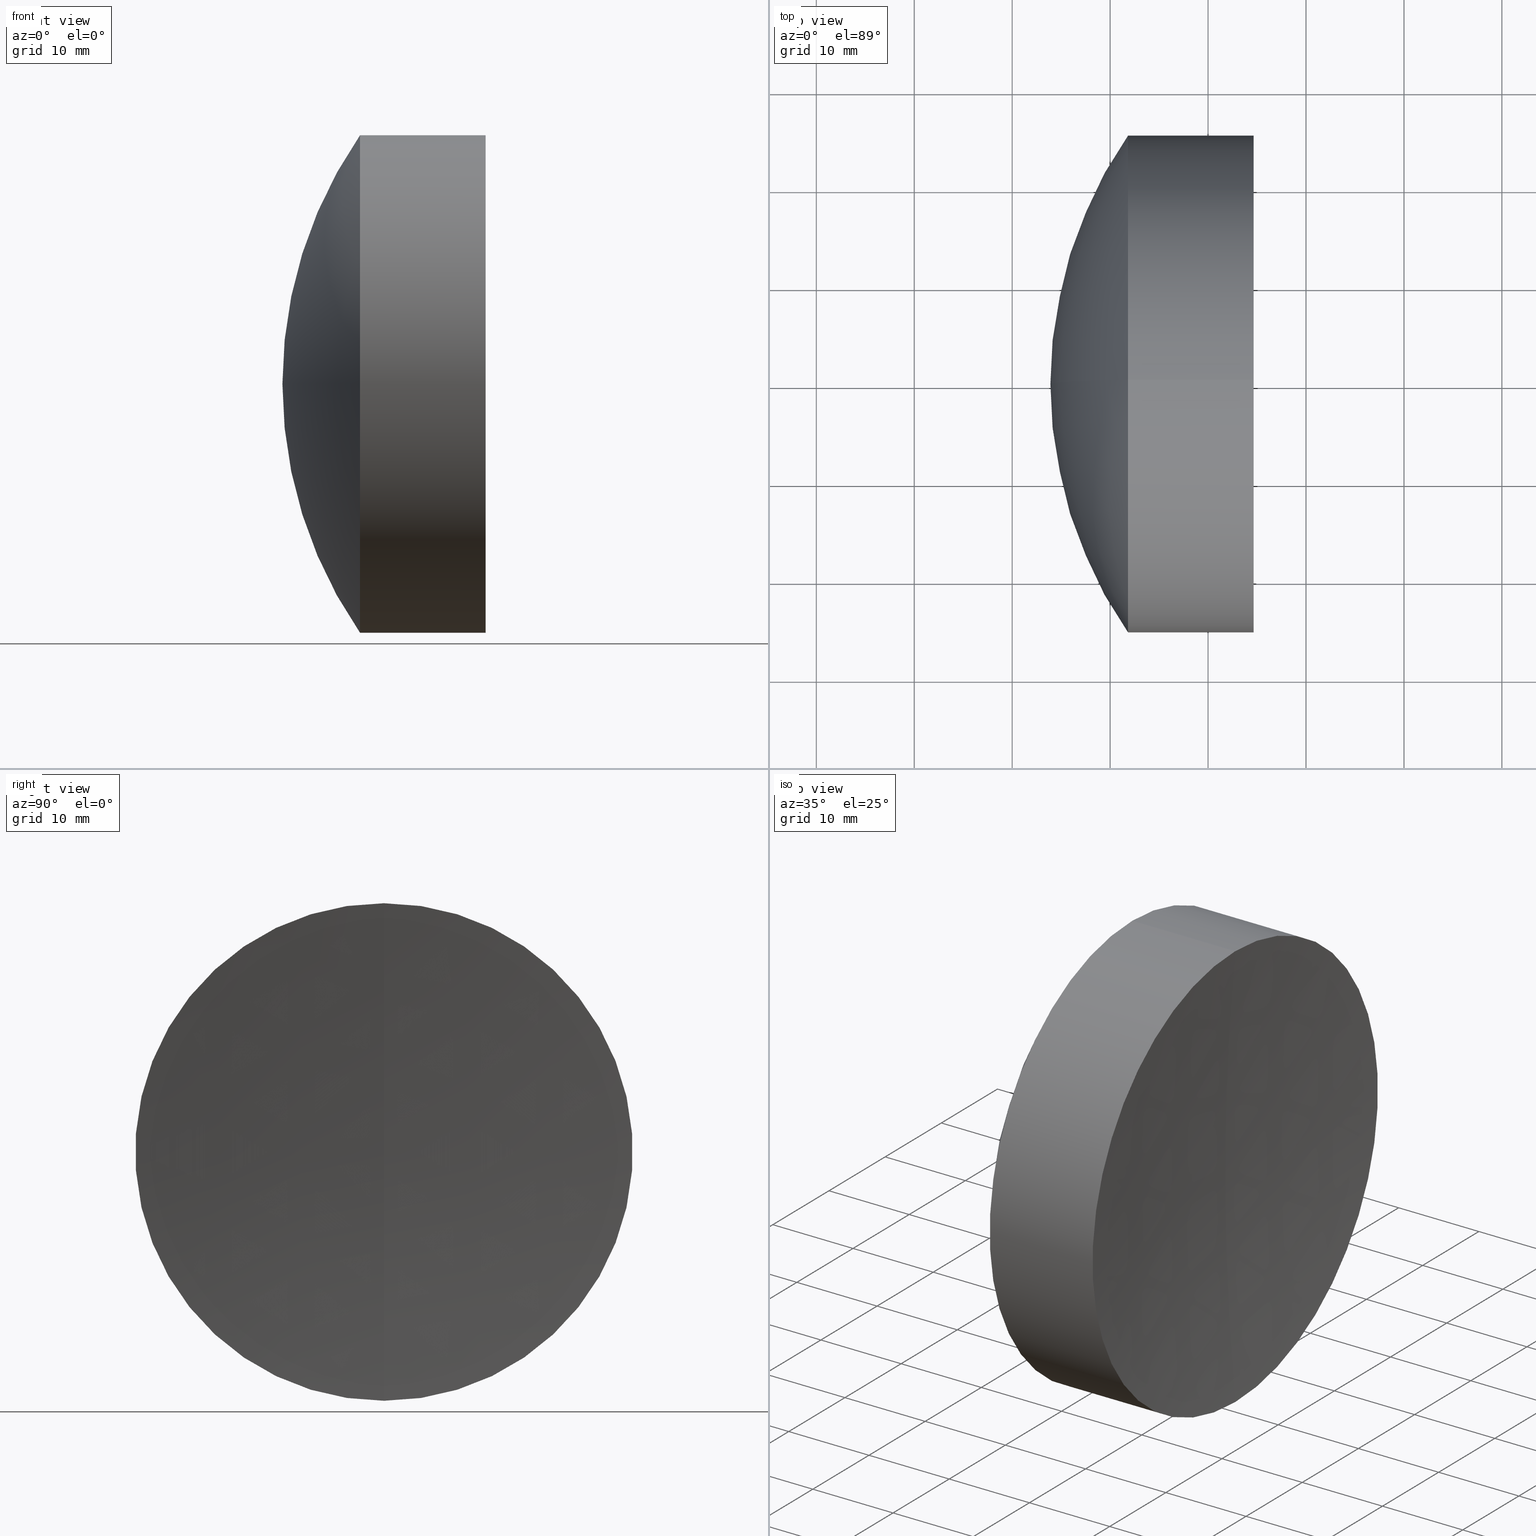
[diagram: canonical four-view strip — front | top / right | iso, engineering-drawing reading convention]
A machine part, canonical four-view strip (front | top / right | iso — engineering-drawing reading convention). The complete STEP part file that produces these views, byte-faithful:
ISO-10303-21;
HEADER;
FILE_DESCRIPTION (( 'STEP AP214' ),
    '1' );
FILE_NAME ('145178.STEP',
    '2019-06-12T07:30:43',
    ( 'user' ),
    ( '΢���й�' ),
    'SwSTEP 2.0',
    'SolidWorks 2016',
    '' );
FILE_SCHEMA (( 'AUTOMOTIVE_DESIGN' ));
ENDSEC;

DATA;
#1 = APPLICATION_CONTEXT ( 'automotive_design' ) ;
#2 = CARTESIAN_POINT ( 'NONE',  ( 103.6840923325976700, 0.0000000000000000000, 25.39999999999998100 ) ) ;
#3 = FILL_AREA_STYLE ('',( #342 ) ) ;
#4 = ADVANCED_FACE ( 'NONE', ( #33 ), #253, .T. ) ;
#5 = DIRECTION ( 'NONE',  ( 0.0000000000000000000, -1.000000000000000000, 0.0000000000000000000 ) ) ;
#6 = EDGE_CURVE ( 'NONE', #330, #49, #326, .T. ) ;
#7 = ORIENTED_EDGE ( 'NONE', *, *, #67, .T. ) ;
#8 = ORIENTED_EDGE ( 'NONE', *, *, #210, .T. ) ;
#9 = CARTESIAN_POINT ( 'NONE',  ( 62.59034463297795300, 0.0000000000000000000, -1.005007927519728000E-022 ) ) ;
#10 = CARTESIAN_POINT ( 'NONE',  ( 93.90034463297794800, 0.0000000000000000000, 7.123233762843052800E-016 ) ) ;
#11 = ORIENTED_EDGE ( 'NONE', *, *, #36, .F. ) ;
#12 = ADVANCED_FACE ( 'NONE', ( #46 ), #89, .T. ) ;
#13 = DIRECTION ( 'NONE',  ( -1.000000000000000000, -0.0000000000000000000, -0.0000000000000000000 ) ) ;
#14 = AXIS2_PLACEMENT_3D ( 'NONE', #240, #346, #19 ) ;
#15 = CARTESIAN_POINT ( 'NONE',  ( 110.9003446329779600, 0.0000000000000000000, 2.958134242839639600E-015 ) ) ;
#16 = ORIENTED_EDGE ( 'NONE', *, *, #178, .F. ) ;
#17 = CARTESIAN_POINT ( 'NONE',  ( 103.6840923325976700, 0.0000000000000000000, 25.39999999999999500 ) ) ;
#18 =( NAMED_UNIT ( * ) SI_UNIT ( $, .STERADIAN. ) SOLID_ANGLE_UNIT ( ) );
#19 = DIRECTION ( 'NONE',  ( 0.0000000000000000000, 0.0000000000000000000, 1.000000000000000000 ) ) ;
#20 =( NAMED_UNIT ( * ) PLANE_ANGLE_UNIT ( ) SI_UNIT ( $, .RADIAN. ) );
#21 = EDGE_LOOP ( 'NONE', ( #234, #162, #131, #297 ) ) ;
#22 = EDGE_CURVE ( 'NONE', #316, #40, #136, .T. ) ;
#23 = DIRECTION ( 'NONE',  ( -1.000000000000000000, -0.0000000000000000000, -0.0000000000000000000 ) ) ;
#24 = FACE_OUTER_BOUND ( 'NONE', #327, .T. ) ;
#25 = DIRECTION ( 'NONE',  ( 0.0000000000000000000, 0.0000000000000000000, 1.000000000000000000 ) ) ;
#26 = DIRECTION ( 'NONE',  ( 1.000000000000000000, 0.0000000000000000000, 0.0000000000000000000 ) ) ;
#27 = FACE_OUTER_BOUND ( 'NONE', #102, .T. ) ;
#28 = ORIENTED_EDGE ( 'NONE', *, *, #285, .F. ) ;
#29 = AXIS2_PLACEMENT_3D ( 'NONE', #254, #251, #84 ) ;
#30 = PRODUCT_DEFINITION ( 'δ֪', '', #148, #119 ) ;
#31 = CARTESIAN_POINT ( 'NONE',  ( 113.4003446329779900, 0.0000000000000000000, -1.588366898494116900E-014 ) ) ;
#32 = SURFACE_STYLE_USAGE ( .BOTH. , #191 ) ;
#33 = FACE_OUTER_BOUND ( 'NONE', #88, .T. ) ;
#34 = MECHANICAL_DESIGN_GEOMETRIC_PRESENTATION_REPRESENTATION (  '', ( #62 ), #57 ) ;
#35 = ORIENTED_EDGE ( 'NONE', *, *, #244, .T. ) ;
#36 = EDGE_CURVE ( 'NONE', #141, #99, #261, .T. ) ;
#37 = ADVANCED_BREP_SHAPE_REPRESENTATION ( '145178', ( #194, #114, #307 ), #229 ) ;
#38 = CARTESIAN_POINT ( 'NONE',  ( 110.9003446329779600, 0.0000000000000000000, 2.958134242839639200E-015 ) ) ;
#39 = ORIENTED_EDGE ( 'NONE', *, *, #290, .T. ) ;
#40 = VERTEX_POINT ( 'NONE', #320 ) ;
#41 = DIRECTION ( 'NONE',  ( 0.0000000000000000000, 0.0000000000000000000, -1.000000000000000000 ) ) ;
#42 = AXIS2_PLACEMENT_3D ( 'NONE', #183, #155, #271 ) ;
#43 = CARTESIAN_POINT ( 'NONE',  ( -0.8160621761658039000, 0.0000000000000000000, 0.0000000000000000000 ) ) ;
#44 = CARTESIAN_POINT ( 'NONE',  ( 372.8003446329779500, 0.0000000000000000000, 0.0000000000000000000 ) ) ;
#45 = VERTEX_POINT ( 'NONE', #2 ) ;
#46 = FACE_OUTER_BOUND ( 'NONE', #317, .T. ) ;
#47 = CARTESIAN_POINT ( 'NONE',  ( -0.8160621761658039000, 3.110602869834276900E-015, -25.39999999999999900 ) ) ;
#48 = CARTESIAN_POINT ( 'NONE',  ( 101.8246115473529000, 0.0000000000000000000, 0.0000000000000000000 ) ) ;
#49 = VERTEX_POINT ( 'NONE', #289 ) ;
#50 = AXIS2_PLACEMENT_3D ( 'NONE', #59, #174, #227 ) ;
#51 = DIRECTION ( 'NONE',  ( 0.0000000000000000000, 0.0000000000000000000, 1.000000000000000000 ) ) ;
#52 = DIRECTION ( 'NONE',  ( -1.000000000000000000, -0.0000000000000000000, -0.0000000000000000000 ) ) ;
#53 = DIRECTION ( 'NONE',  ( 0.0000000000000000000, 0.0000000000000000000, 1.000000000000000000 ) ) ;
#54 = EDGE_LOOP ( 'NONE', ( #322, #110, #109 ) ) ;
#55 = ADVANCED_FACE ( 'NONE', ( #27 ), #321, .F. ) ;
#56 = AXIS2_PLACEMENT_3D ( 'NONE', #329, #340, #58 ) ;
#57 =( GEOMETRIC_REPRESENTATION_CONTEXT ( 3 ) GLOBAL_UNCERTAINTY_ASSIGNED_CONTEXT ( ( #305 ) ) GLOBAL_UNIT_ASSIGNED_CONTEXT ( ( #315, #304, #74 ) ) REPRESENTATION_CONTEXT ( 'NONE', 'WORKASPACE' ) );
#58 = DIRECTION ( 'NONE',  ( 0.0000000000000000000, 0.0000000000000000000, 1.000000000000000000 ) ) ;
#59 = CARTESIAN_POINT ( 'NONE',  ( 138.5703446329779600, 0.0000000000000000000, -2.022925249611308500E-015 ) ) ;
#60 = AXIS2_PLACEMENT_3D ( 'NONE', #166, #87, #328 ) ;
#61 = ADVANCED_FACE ( 'NONE', ( #237 ), #70, .T. ) ;
#62 = STYLED_ITEM ( 'NONE', ( #209 ), #194 ) ;
#63 = VERTEX_POINT ( 'NONE', #150 ) ;
#64 =( LENGTH_UNIT ( ) NAMED_UNIT ( * ) SI_UNIT ( .MILLI., .METRE. ) );
#65 = CIRCLE ( 'NONE', #199, 48.31000000000000200 ) ;
#66 = DIRECTION ( 'NONE',  ( 0.0000000000000000000, 1.224646799147353200E-016, -1.000000000000000000 ) ) ;
#67 = EDGE_CURVE ( 'NONE', #184, #45, #213, .T. ) ;
#68 = CARTESIAN_POINT ( 'NONE',  ( 372.8003446329779500, 0.0000000000000000000, 0.0000000000000000000 ) ) ;
#69 =( NAMED_UNIT ( * ) PLANE_ANGLE_UNIT ( ) SI_UNIT ( $, .RADIAN. ) );
#70 = CYLINDRICAL_SURFACE ( 'NONE', #107, 25.39999999999999900 ) ;
#71 = AXIS2_PLACEMENT_3D ( 'NONE', #146, #130, #282 ) ;
#72 = AXIS2_PLACEMENT_3D ( 'NONE', #168, #208, #177 ) ;
#73 = DIRECTION ( 'NONE',  ( 0.0000000000000000000, 0.0000000000000000000, 1.000000000000000000 ) ) ;
#74 =( NAMED_UNIT ( * ) SI_UNIT ( $, .STERADIAN. ) SOLID_ANGLE_UNIT ( ) );
#75 = ORIENTED_EDGE ( 'NONE', *, *, #104, .F. ) ;
#76 = DIRECTION ( 'NONE',  ( 0.0000000000000000000, -1.000000000000000000, 0.0000000000000000000 ) ) ;
#77 = DIRECTION ( 'NONE',  ( 0.0000000000000000000, 0.0000000000000000000, 1.000000000000000000 ) ) ;
#78 = AXIS2_PLACEMENT_3D ( 'NONE', #85, #204, #232 ) ;
#79 = DIRECTION ( 'NONE',  ( -0.0000000000000000000, 1.000000000000000000, 1.224646799147353200E-016 ) ) ;
#80 = ORIENTED_EDGE ( 'NONE', *, *, #104, .T. ) ;
#81 = ADVANCED_FACE ( 'NONE', ( #214 ), #325, .T. ) ;
#82 = DIRECTION ( 'NONE',  ( 0.0000000000000000000, -1.224646799147353500E-016, 1.000000000000000000 ) ) ;
#83 = ADVANCED_FACE ( 'NONE', ( #202 ), #105, .T. ) ;
#84 = DIRECTION ( 'NONE',  ( 0.0000000000000000000, 0.0000000000000000000, 1.000000000000000000 ) ) ;
#85 = CARTESIAN_POINT ( 'NONE',  ( -0.5519199926577972300, 0.0000000000000000000, 0.0000000000000000000 ) ) ;
#86 = SURFACE_STYLE_FILL_AREA ( #339 ) ;
#87 = DIRECTION ( 'NONE',  ( -1.000000000000000000, -0.0000000000000000000, -0.0000000000000000000 ) ) ;
#88 = EDGE_LOOP ( 'NONE', ( #147, #266, #11 ) ) ;
#89 = CYLINDRICAL_SURFACE ( 'NONE', #78, 25.39999999999997700 ) ;
#90 = DIRECTION ( 'NONE',  ( 0.0000000000000000000, 0.0000000000000000000, 1.000000000000000000 ) ) ;
#91 = AXIS2_PLACEMENT_3D ( 'NONE', #212, #5, #265 ) ;
#92 = DIRECTION ( 'NONE',  ( 0.0000000000000000000, 0.0000000000000000000, 1.000000000000000000 ) ) ;
#93 = ORIENTED_EDGE ( 'NONE', *, *, #290, .F. ) ;
#94 = UNCERTAINTY_MEASURE_WITH_UNIT (LENGTH_MEASURE( 1.000000000000000100E-005 ), #64, 'distance_accuracy_value', 'NONE');
#95 = APPLICATION_PROTOCOL_DEFINITION ( 'draft international standard', 'automotive_design', 1998, #97 ) ;
#96 = COLOUR_RGB ( '',1.000000000000000000, 1.000000000000000000, 1.000000000000000000 ) ;
#97 = APPLICATION_CONTEXT ( 'automotive_design' ) ;
#98 = AXIS2_PLACEMENT_3D ( 'NONE', #256, #127, #82 ) ;
#99 = VERTEX_POINT ( 'NONE', #10 ) ;
#100 = AXIS2_PLACEMENT_3D ( 'NONE', #158, #133, #189 ) ;
#101 = DIRECTION ( 'NONE',  ( 0.0000000000000000000, 0.0000000000000000000, 1.000000000000000000 ) ) ;
#102 = EDGE_LOOP ( 'NONE', ( #121, #308, #220 ) ) ;
#103 = AXIS2_PLACEMENT_3D ( 'NONE', #197, #176, #343 ) ;
#104 = EDGE_CURVE ( 'NONE', #190, #184, #135, .T. ) ;
#105 = SPHERICAL_SURFACE ( 'NONE', #29, 44.67000000000000900 ) ;
#106 = FILL_AREA_STYLE_COLOUR ( '', #302 ) ;
#107 = AXIS2_PLACEMENT_3D ( 'NONE', #239, #318, #335 ) ;
#108 = AXIS2_PLACEMENT_3D ( 'NONE', #311, #196, #90 ) ;
#109 = ORIENTED_EDGE ( 'NONE', *, *, #298, .T. ) ;
#110 = ORIENTED_EDGE ( 'NONE', *, *, #6, .F. ) ;
#111 = DIRECTION ( 'NONE',  ( 0.0000000000000000000, 0.0000000000000000000, 1.000000000000000000 ) ) ;
#112 = DIRECTION ( 'NONE',  ( -1.000000000000000000, -0.0000000000000000000, -0.0000000000000000000 ) ) ;
#113 = EDGE_LOOP ( 'NONE', ( #309, #132, #173, #296 ) ) ;
#114 = MANIFOLD_SOLID_BREP ( '��ת2', #217 ) ;
#115 = CARTESIAN_POINT ( 'NONE',  ( 103.6840923325976700, 0.0000000000000000000, 0.0000000000000000000 ) ) ;
#116 = CLOSED_SHELL ( 'NONE', ( #134, #161, #4, #83, #61, #81 ) ) ;
#117 = DIRECTION ( 'NONE',  ( -0.0000000000000000000, -1.000000000000000000, -0.0000000000000000000 ) ) ;
#118 = MECHANICAL_DESIGN_GEOMETRIC_PRESENTATION_REPRESENTATION (  '', ( #274 ), #151 ) ;
#119 = PRODUCT_DEFINITION_CONTEXT ( 'detailed design', #1, 'design' ) ;
#120 = DIRECTION ( 'NONE',  ( 0.0000000000000000000, 0.0000000000000000000, -1.000000000000000000 ) ) ;
#121 = ORIENTED_EDGE ( 'NONE', *, *, #263, .F. ) ;
#122 = CARTESIAN_POINT ( 'NONE',  ( 0.0000000000000000000, 0.0000000000000000000, 0.0000000000000000000 ) ) ;
#123 =( LENGTH_UNIT ( ) NAMED_UNIT ( * ) SI_UNIT ( .MILLI., .METRE. ) );
#124 = VERTEX_POINT ( 'NONE', #15 ) ;
#125 = ORIENTED_EDGE ( 'NONE', *, *, #156, .T. ) ;
#126 = AXIS2_PLACEMENT_3D ( 'NONE', #129, #260, #53 ) ;
#127 = DIRECTION ( 'NONE',  ( -0.0000000000000000000, 1.000000000000000000, 1.224646799147353200E-016 ) ) ;
#128 = CARTESIAN_POINT ( 'NONE',  ( 103.6840923325976700, 0.0000000000000000000, 0.0000000000000000000 ) ) ;
#129 = CARTESIAN_POINT ( 'NONE',  ( 114.6469018901007200, 0.0000000000000000000, 0.0000000000000000000 ) ) ;
#130 = DIRECTION ( 'NONE',  ( 0.0000000000000000000, 1.000000000000000000, 0.0000000000000000000 ) ) ;
#131 = ORIENTED_EDGE ( 'NONE', *, *, #223, .T. ) ;
#132 = ORIENTED_EDGE ( 'NONE', *, *, #144, .T. ) ;
#133 = DIRECTION ( 'NONE',  ( 0.0000000000000000000, 1.000000000000000000, 0.0000000000000000000 ) ) ;
#134 = ADVANCED_FACE ( 'NONE', ( #338 ), #273, .T. ) ;
#135 = CIRCLE ( 'NONE', #98, 48.31000000000000200 ) ;
#136 = CIRCLE ( 'NONE', #60, 25.39999999999999500 ) ;
#137 = DIRECTION ( 'NONE',  ( -1.000000000000000000, -0.0000000000000000000, -0.0000000000000000000 ) ) ;
#138 = PRESENTATION_STYLE_ASSIGNMENT (( #32 ) ) ;
#139 = AXIS2_PLACEMENT_3D ( 'NONE', #287, #193, #331 ) ;
#140 = EDGE_CURVE ( 'NONE', #49, #45, #249, .T. ) ;
#141 = VERTEX_POINT ( 'NONE', #182 ) ;
#142 = DIRECTION ( 'NONE',  ( -1.000000000000000000, -0.0000000000000000000, -0.0000000000000000000 ) ) ;
#143 = CIRCLE ( 'NONE', #188, 259.3999999999999800 ) ;
#144 = EDGE_CURVE ( 'NONE', #330, #184, #247, .T. ) ;
#145 = AXIS2_PLACEMENT_3D ( 'NONE', #9, #79, #347 ) ;
#146 = CARTESIAN_POINT ( 'NONE',  ( 138.5703446329779600, 0.0000000000000000000, -2.022925249611308500E-015 ) ) ;
#147 = ORIENTED_EDGE ( 'NONE', *, *, #178, .T. ) ;
#148 = PRODUCT_DEFINITION_FORMATION_WITH_SPECIFIED_SOURCE ( '�κ�', '', #149, .NOT_KNOWN. ) ;
#149 = PRODUCT ( '145178', '145178', '', ( #218 ) ) ;
#150 = CARTESIAN_POINT ( 'NONE',  ( 101.8246115473529000, 3.110602869834276900E-015, -25.40000000000000600 ) ) ;
#151 =( GEOMETRIC_REPRESENTATION_CONTEXT ( 3 ) GLOBAL_UNCERTAINTY_ASSIGNED_CONTEXT ( ( #94 ) ) GLOBAL_UNIT_ASSIGNED_CONTEXT ( ( #64, #258, #18 ) ) REPRESENTATION_CONTEXT ( 'NONE', 'WORKASPACE' ) );
#152 = SURFACE_STYLE_USAGE ( .BOTH. , #283 ) ;
#153 = ORIENTED_EDGE ( 'NONE', *, *, #156, .F. ) ;
#154 = VECTOR ( 'NONE', #159, 1000.000000000000000 ) ;
#155 = DIRECTION ( 'NONE',  ( -1.000000000000000000, -0.0000000000000000000, -0.0000000000000000000 ) ) ;
#156 = EDGE_CURVE ( 'NONE', #124, #40, #175, .T. ) ;
#157 = AXIS2_PLACEMENT_3D ( 'NONE', #48, #236, #73 ) ;
#158 = CARTESIAN_POINT ( 'NONE',  ( 62.59034463297795300, 0.0000000000000000000, -1.005007927519728000E-022 ) ) ;
#159 = DIRECTION ( 'NONE',  ( -1.000000000000000000, -0.0000000000000000000, -0.0000000000000000000 ) ) ;
#160 = COLOUR_RGB ( '',1.000000000000000000, 1.000000000000000000, 1.000000000000000000 ) ;
#161 = ADVANCED_FACE ( 'NONE', ( #24 ), #226, .T. ) ;
#162 = ORIENTED_EDGE ( 'NONE', *, *, #285, .T. ) ;
#163 = ADVANCED_FACE ( 'NONE', ( #170 ), #279, .F. ) ;
#164 = ORIENTED_EDGE ( 'NONE', *, *, #186, .F. ) ;
#165 = VECTOR ( 'NONE', #207, 1000.000000000000000 ) ;
#166 = CARTESIAN_POINT ( 'NONE',  ( 103.6840923325976700, 0.0000000000000000000, 0.0000000000000000000 ) ) ;
#167 =( NAMED_UNIT ( * ) SI_UNIT ( $, .STERADIAN. ) SOLID_ANGLE_UNIT ( ) );
#168 = CARTESIAN_POINT ( 'NONE',  ( 138.5703446329779600, 0.0000000000000000000, -2.022925249611308500E-015 ) ) ;
#169 = MECHANICAL_DESIGN_GEOMETRIC_PRESENTATION_REPRESENTATION (  '', ( #252 ), #211 ) ;
#170 = FACE_OUTER_BOUND ( 'NONE', #54, .T. ) ;
#171 =( NAMED_UNIT ( * ) SI_UNIT ( $, .STERADIAN. ) SOLID_ANGLE_UNIT ( ) );
#172 = AXIS2_PLACEMENT_3D ( 'NONE', #294, #137, #101 ) ;
#173 = ORIENTED_EDGE ( 'NONE', *, *, #210, .F. ) ;
#174 = DIRECTION ( 'NONE',  ( 0.0000000000000000000, -1.000000000000000000, 0.0000000000000000000 ) ) ;
#175 = CIRCLE ( 'NONE', #145, 48.31000000000000900 ) ;
#176 = DIRECTION ( 'NONE',  ( -1.000000000000000000, -0.0000000000000000000, -0.0000000000000000000 ) ) ;
#177 = DIRECTION ( 'NONE',  ( 0.0000000000000000000, -1.224646799147353200E-016, 1.000000000000000000 ) ) ;
#178 = EDGE_CURVE ( 'NONE', #141, #63, #181, .T. ) ;
#179 = AXIS2_PLACEMENT_3D ( 'NONE', #272, #117, #344 ) ;
#180 = CIRCLE ( 'NONE', #91, 48.31000000000000900 ) ;
#181 = CIRCLE ( 'NONE', #42, 25.39999999999999900 ) ;
#182 = CARTESIAN_POINT ( 'NONE',  ( 101.8246115473529000, 0.0000000000000000000, 25.39999999999999900 ) ) ;
#183 = CARTESIAN_POINT ( 'NONE',  ( 101.8246115473529000, 0.0000000000000000000, 0.0000000000000000000 ) ) ;
#184 = VERTEX_POINT ( 'NONE', #268 ) ;
#185 = CIRCLE ( 'NONE', #281, 25.39999999999997700 ) ;
#186 = EDGE_CURVE ( 'NONE', #124, #316, #180, .T. ) ;
#187 = UNCERTAINTY_MEASURE_WITH_UNIT (LENGTH_MEASURE( 1.000000000000000100E-005 ), #259, 'distance_accuracy_value', 'NONE');
#188 = AXIS2_PLACEMENT_3D ( 'NONE', #44, #200, #66 ) ;
#189 = DIRECTION ( 'NONE',  ( 0.0000000000000000000, 0.0000000000000000000, 1.000000000000000000 ) ) ;
#190 = VERTEX_POINT ( 'NONE', #38 ) ;
#191 = SURFACE_SIDE_STYLE ('',( #86 ) ) ;
#192 = CIRCLE ( 'NONE', #72, 44.67000000000000900 ) ;
#193 = DIRECTION ( 'NONE',  ( 0.0000000000000000000, 1.000000000000000000, 0.0000000000000000000 ) ) ;
#194 = MANIFOLD_SOLID_BREP ( '��ת1', #116 ) ;
#195 = AXIS2_PLACEMENT_3D ( 'NONE', #43, #313, #77 ) ;
#196 = DIRECTION ( 'NONE',  ( 0.0000000000000000000, 1.000000000000000000, -0.0000000000000000000 ) ) ;
#197 = CARTESIAN_POINT ( 'NONE',  ( 103.6840923325976700, 0.0000000000000000000, 0.0000000000000000000 ) ) ;
#198 = ORIENTED_EDGE ( 'NONE', *, *, #6, .T. ) ;
#199 = AXIS2_PLACEMENT_3D ( 'NONE', #337, #76, #120 ) ;
#200 = DIRECTION ( 'NONE',  ( 0.0000000000000000000, -1.000000000000000000, -1.224646799147353200E-016 ) ) ;
#201 = APPLICATION_PROTOCOL_DEFINITION ( 'draft international standard', 'automotive_design', 1998, #1 ) ;
#202 = FACE_OUTER_BOUND ( 'NONE', #233, .T. ) ;
#203 = EDGE_CURVE ( 'NONE', #63, #99, #192, .T. ) ;
#204 = DIRECTION ( 'NONE',  ( -1.000000000000000000, -0.0000000000000000000, -0.0000000000000000000 ) ) ;
#205 = PRESENTATION_LAYER_ASSIGNMENT (  '', '', ( #252 ) ) ;
#206 = SPHERICAL_SURFACE ( 'NONE', #14, 48.31000000000000200 ) ;
#207 = DIRECTION ( 'NONE',  ( -1.000000000000000000, -0.0000000000000000000, -0.0000000000000000000 ) ) ;
#208 = DIRECTION ( 'NONE',  ( -0.0000000000000000000, 1.000000000000000000, 1.224646799147353200E-016 ) ) ;
#209 = PRESENTATION_STYLE_ASSIGNMENT (( #264 ) ) ;
#210 = EDGE_CURVE ( 'NONE', #45, #184, #185, .T. ) ;
#211 =( GEOMETRIC_REPRESENTATION_CONTEXT ( 3 ) GLOBAL_UNCERTAINTY_ASSIGNED_CONTEXT ( ( #187 ) ) GLOBAL_UNIT_ASSIGNED_CONTEXT ( ( #259, #69, #171 ) ) REPRESENTATION_CONTEXT ( 'NONE', 'WORKASPACE' ) );
#212 = CARTESIAN_POINT ( 'NONE',  ( 62.59034463297795300, 0.0000000000000000000, -1.005007927519728000E-022 ) ) ;
#213 = CIRCLE ( 'NONE', #230, 25.39999999999997700 ) ;
#214 = FACE_OUTER_BOUND ( 'NONE', #336, .T. ) ;
#215 = CARTESIAN_POINT ( 'NONE',  ( -0.8160621761658039000, 0.0000000000000000000, 25.39999999999999900 ) ) ;
#216 = PRODUCT_RELATED_PRODUCT_CATEGORY ( 'part', '', ( #149 ) ) ;
#217 = CLOSED_SHELL ( 'NONE', ( #250, #55, #280, #303, #163, #12 ) ) ;
#218 = PRODUCT_CONTEXT ( 'NONE', #97, 'mechanical' ) ;
#219 = UNCERTAINTY_MEASURE_WITH_UNIT (LENGTH_MEASURE( 1.000000000000000100E-005 ), #123, 'distance_accuracy_value', 'NONE');
#220 = ORIENTED_EDGE ( 'NONE', *, *, #298, .F. ) ;
#221 = CARTESIAN_POINT ( 'NONE',  ( 114.6469018901007200, 0.0000000000000000000, 0.0000000000000000000 ) ) ;
#222 = SURFACE_SIDE_STYLE ('',( #310 ) ) ;
#223 = EDGE_CURVE ( 'NONE', #316, #141, #332, .T. ) ;
#224 = ORIENTED_EDGE ( 'NONE', *, *, #203, .F. ) ;
#225 = ORIENTED_EDGE ( 'NONE', *, *, #140, .T. ) ;
#226 = CYLINDRICAL_SURFACE ( 'NONE', #195, 25.39999999999999900 ) ;
#227 = DIRECTION ( 'NONE',  ( 0.0000000000000000000, 0.0000000000000000000, -1.000000000000000000 ) ) ;
#228 = DIRECTION ( 'NONE',  ( -0.0000000000000000000, -1.000000000000000000, -0.0000000000000000000 ) ) ;
#229 =( GEOMETRIC_REPRESENTATION_CONTEXT ( 3 ) GLOBAL_UNCERTAINTY_ASSIGNED_CONTEXT ( ( #219 ) ) GLOBAL_UNIT_ASSIGNED_CONTEXT ( ( #123, #20, #167 ) ) REPRESENTATION_CONTEXT ( 'NONE', 'WORKASPACE' ) );
#230 = AXIS2_PLACEMENT_3D ( 'NONE', #128, #23, #92 ) ;
#231 = PRESENTATION_LAYER_ASSIGNMENT (  '', '', ( #274 ) ) ;
#232 = DIRECTION ( 'NONE',  ( 0.0000000000000000000, 0.0000000000000000000, 1.000000000000000000 ) ) ;
#233 = EDGE_LOOP ( 'NONE', ( #224, #270, #314 ) ) ;
#234 = ORIENTED_EDGE ( 'NONE', *, *, #244, .F. ) ;
#235 = FACE_OUTER_BOUND ( 'NONE', #113, .T. ) ;
#236 = DIRECTION ( 'NONE',  ( -1.000000000000000000, -0.0000000000000000000, -0.0000000000000000000 ) ) ;
#237 = FACE_OUTER_BOUND ( 'NONE', #21, .T. ) ;
#238 = EDGE_CURVE ( 'NONE', #63, #141, #245, .T. ) ;
#239 = CARTESIAN_POINT ( 'NONE',  ( -0.8160621761658039000, 0.0000000000000000000, 0.0000000000000000000 ) ) ;
#240 = CARTESIAN_POINT ( 'NONE',  ( 62.59034463297795300, 0.0000000000000000000, -1.005007927519728000E-022 ) ) ;
#241 = CARTESIAN_POINT ( 'NONE',  ( -0.5519199926577972300, 0.0000000000000000000, 25.39999999999997700 ) ) ;
#242 = ORIENTED_EDGE ( 'NONE', *, *, #186, .T. ) ;
#243 = ORIENTED_EDGE ( 'NONE', *, *, #22, .T. ) ;
#244 = EDGE_CURVE ( 'NONE', #40, #63, #275, .T. ) ;
#245 = CIRCLE ( 'NONE', #157, 25.39999999999999900 ) ;
#246 = PRESENTATION_LAYER_ASSIGNMENT (  '', '', ( #62 ) ) ;
#247 = LINE ( 'NONE', #276, #165 ) ;
#248 = VERTEX_POINT ( 'NONE', #31 ) ;
#249 = LINE ( 'NONE', #241, #154 ) ;
#250 = ADVANCED_FACE ( 'NONE', ( #235 ), #299, .T. ) ;
#251 = DIRECTION ( 'NONE',  ( 0.0000000000000000000, 1.000000000000000000, 0.0000000000000000000 ) ) ;
#252 = STYLED_ITEM ( 'NONE', ( #312 ), #114 ) ;
#253 = SPHERICAL_SURFACE ( 'NONE', #71, 44.67000000000000900 ) ;
#254 = CARTESIAN_POINT ( 'NONE',  ( 138.5703446329779600, 0.0000000000000000000, -2.022925249611308500E-015 ) ) ;
#255 = SHAPE_DEFINITION_REPRESENTATION ( #292, #37 ) ;
#256 = CARTESIAN_POINT ( 'NONE',  ( 62.59034463297795300, 0.0000000000000000000, -1.005007927519728000E-022 ) ) ;
#257 = VECTOR ( 'NONE', #112, 1000.000000000000000 ) ;
#258 =( NAMED_UNIT ( * ) PLANE_ANGLE_UNIT ( ) SI_UNIT ( $, .RADIAN. ) );
#259 =( LENGTH_UNIT ( ) NAMED_UNIT ( * ) SI_UNIT ( .MILLI., .METRE. ) );
#260 = DIRECTION ( 'NONE',  ( -1.000000000000000000, -0.0000000000000000000, -0.0000000000000000000 ) ) ;
#261 = CIRCLE ( 'NONE', #50, 44.67000000000000900 ) ;
#262 = FILL_AREA_STYLE_COLOUR ( '', #96 ) ;
#263 = EDGE_CURVE ( 'NONE', #49, #330, #300, .T. ) ;
#264 = SURFACE_STYLE_USAGE ( .BOTH. , #222 ) ;
#265 = DIRECTION ( 'NONE',  ( 0.0000000000000000000, 0.0000000000000000000, -1.000000000000000000 ) ) ;
#266 = ORIENTED_EDGE ( 'NONE', *, *, #203, .T. ) ;
#267 = ORIENTED_EDGE ( 'NONE', *, *, #144, .F. ) ;
#268 = CARTESIAN_POINT ( 'NONE',  ( 103.6840923325976700, 3.110602869834274900E-015, -25.39999999999998100 ) ) ;
#269 = FACE_OUTER_BOUND ( 'NONE', #345, .T. ) ;
#270 = ORIENTED_EDGE ( 'NONE', *, *, #238, .T. ) ;
#271 = DIRECTION ( 'NONE',  ( 0.0000000000000000000, 0.0000000000000000000, 1.000000000000000000 ) ) ;
#272 = CARTESIAN_POINT ( 'NONE',  ( 372.8003446329779500, 0.0000000000000000000, 0.0000000000000000000 ) ) ;
#273 = SPHERICAL_SURFACE ( 'NONE', #100, 48.31000000000000900 ) ;
#274 = STYLED_ITEM ( 'NONE', ( #138 ), #37 ) ;
#275 = LINE ( 'NONE', #47, #286 ) ;
#276 = CARTESIAN_POINT ( 'NONE',  ( -0.5519199926577972300, 3.110602869834274500E-015, -25.39999999999997700 ) ) ;
#277 = ORIENTED_EDGE ( 'NONE', *, *, #67, .F. ) ;
#278 = SPHERICAL_SURFACE ( 'NONE', #139, 48.31000000000000200 ) ;
#279 = SPHERICAL_SURFACE ( 'NONE', #179, 259.3999999999999800 ) ;
#280 = ADVANCED_FACE ( 'NONE', ( #269 ), #278, .F. ) ;
#281 = AXIS2_PLACEMENT_3D ( 'NONE', #115, #142, #51 ) ;
#282 = DIRECTION ( 'NONE',  ( 0.0000000000000000000, 0.0000000000000000000, 1.000000000000000000 ) ) ;
#283 = SURFACE_SIDE_STYLE ('',( #319 ) ) ;
#284 = CIRCLE ( 'NONE', #103, 25.39999999999999500 ) ;
#285 = EDGE_CURVE ( 'NONE', #40, #316, #284, .T. ) ;
#286 = VECTOR ( 'NONE', #52, 1000.000000000000000 ) ;
#287 = CARTESIAN_POINT ( 'NONE',  ( 62.59034463297795300, 0.0000000000000000000, -1.005007927519728000E-022 ) ) ;
#288 = CIRCLE ( 'NONE', #108, 259.3999999999999800 ) ;
#289 = CARTESIAN_POINT ( 'NONE',  ( 114.6469018901007100, -3.110602869834265800E-015, 25.39999999999991000 ) ) ;
#290 = EDGE_CURVE ( 'NONE', #190, #45, #65, .T. ) ;
#291 = EDGE_LOOP ( 'NONE', ( #164, #125, #301 ) ) ;
#292 = PRODUCT_DEFINITION_SHAPE ( 'NONE', 'NONE',  #30 ) ;
#293 = FACE_OUTER_BOUND ( 'NONE', #324, .T. ) ;
#294 = CARTESIAN_POINT ( 'NONE',  ( -0.5519199926577972300, 0.0000000000000000000, 0.0000000000000000000 ) ) ;
#295 = FILL_AREA_STYLE ('',( #106 ) ) ;
#296 = ORIENTED_EDGE ( 'NONE', *, *, #140, .F. ) ;
#297 = ORIENTED_EDGE ( 'NONE', *, *, #238, .F. ) ;
#298 = EDGE_CURVE ( 'NONE', #330, #248, #288, .T. ) ;
#299 = CYLINDRICAL_SURFACE ( 'NONE', #172, 25.39999999999997700 ) ;
#300 = CIRCLE ( 'NONE', #126, 25.39999999999997700 ) ;
#301 = ORIENTED_EDGE ( 'NONE', *, *, #22, .F. ) ;
#302 = COLOUR_RGB ( '',1.000000000000000000, 1.000000000000000000, 1.000000000000000000 ) ;
#303 = ADVANCED_FACE ( 'NONE', ( #293 ), #206, .F. ) ;
#304 =( NAMED_UNIT ( * ) PLANE_ANGLE_UNIT ( ) SI_UNIT ( $, .RADIAN. ) );
#305 = UNCERTAINTY_MEASURE_WITH_UNIT (LENGTH_MEASURE( 1.000000000000000100E-005 ), #315, 'distance_accuracy_value', 'NONE');
#306 = EDGE_CURVE ( 'NONE', #49, #248, #143, .T. ) ;
#307 = AXIS2_PLACEMENT_3D ( 'NONE', #122, #111, #26 ) ;
#308 = ORIENTED_EDGE ( 'NONE', *, *, #306, .T. ) ;
#309 = ORIENTED_EDGE ( 'NONE', *, *, #263, .T. ) ;
#310 = SURFACE_STYLE_FILL_AREA ( #3 ) ;
#311 = CARTESIAN_POINT ( 'NONE',  ( 372.8003446329779500, 0.0000000000000000000, 0.0000000000000000000 ) ) ;
#312 = PRESENTATION_STYLE_ASSIGNMENT (( #152 ) ) ;
#313 = DIRECTION ( 'NONE',  ( -1.000000000000000000, -0.0000000000000000000, -0.0000000000000000000 ) ) ;
#314 = ORIENTED_EDGE ( 'NONE', *, *, #36, .T. ) ;
#315 =( LENGTH_UNIT ( ) NAMED_UNIT ( * ) SI_UNIT ( .MILLI., .METRE. ) );
#316 = VERTEX_POINT ( 'NONE', #17 ) ;
#317 = EDGE_LOOP ( 'NONE', ( #267, #198, #225, #277 ) ) ;
#318 = DIRECTION ( 'NONE',  ( -1.000000000000000000, -0.0000000000000000000, -0.0000000000000000000 ) ) ;
#319 = SURFACE_STYLE_FILL_AREA ( #295 ) ;
#320 = CARTESIAN_POINT ( 'NONE',  ( 103.6840923325976700, 3.110602869834276500E-015, -25.39999999999999500 ) ) ;
#321 = SPHERICAL_SURFACE ( 'NONE', #333, 259.3999999999999800 ) ;
#322 = ORIENTED_EDGE ( 'NONE', *, *, #306, .F. ) ;
#323 = AXIS2_PLACEMENT_3D ( 'NONE', #221, #13, #25 ) ;
#324 = EDGE_LOOP ( 'NONE', ( #75, #39, #8 ) ) ;
#325 = SPHERICAL_SURFACE ( 'NONE', #56, 48.31000000000000900 ) ;
#326 = CIRCLE ( 'NONE', #323, 25.39999999999997700 ) ;
#327 = EDGE_LOOP ( 'NONE', ( #243, #35, #16, #341 ) ) ;
#328 = DIRECTION ( 'NONE',  ( 0.0000000000000000000, 0.0000000000000000000, 1.000000000000000000 ) ) ;
#329 = CARTESIAN_POINT ( 'NONE',  ( 62.59034463297795300, 0.0000000000000000000, -1.005007927519728000E-022 ) ) ;
#330 = VERTEX_POINT ( 'NONE', #334 ) ;
#331 = DIRECTION ( 'NONE',  ( 0.0000000000000000000, 0.0000000000000000000, 1.000000000000000000 ) ) ;
#332 = LINE ( 'NONE', #215, #257 ) ;
#333 = AXIS2_PLACEMENT_3D ( 'NONE', #68, #228, #41 ) ;
#334 = CARTESIAN_POINT ( 'NONE',  ( 114.6469018901007100, 0.0000000000000000000, -25.39999999999991000 ) ) ;
#335 = DIRECTION ( 'NONE',  ( 0.0000000000000000000, 0.0000000000000000000, 1.000000000000000000 ) ) ;
#336 = EDGE_LOOP ( 'NONE', ( #153, #242, #28 ) ) ;
#337 = CARTESIAN_POINT ( 'NONE',  ( 62.59034463297795300, 0.0000000000000000000, -1.005007927519728000E-022 ) ) ;
#338 = FACE_OUTER_BOUND ( 'NONE', #291, .T. ) ;
#339 = FILL_AREA_STYLE ('',( #262 ) ) ;
#340 = DIRECTION ( 'NONE',  ( 0.0000000000000000000, 1.000000000000000000, 0.0000000000000000000 ) ) ;
#341 = ORIENTED_EDGE ( 'NONE', *, *, #223, .F. ) ;
#342 = FILL_AREA_STYLE_COLOUR ( '', #160 ) ;
#343 = DIRECTION ( 'NONE',  ( 0.0000000000000000000, 0.0000000000000000000, 1.000000000000000000 ) ) ;
#344 = DIRECTION ( 'NONE',  ( 0.0000000000000000000, 0.0000000000000000000, -1.000000000000000000 ) ) ;
#345 = EDGE_LOOP ( 'NONE', ( #93, #80, #7 ) ) ;
#346 = DIRECTION ( 'NONE',  ( 0.0000000000000000000, 1.000000000000000000, 0.0000000000000000000 ) ) ;
#347 = DIRECTION ( 'NONE',  ( 0.0000000000000000000, -1.224646799147353200E-016, 1.000000000000000000 ) ) ;
ENDSEC;
END-ISO-10303-21;
